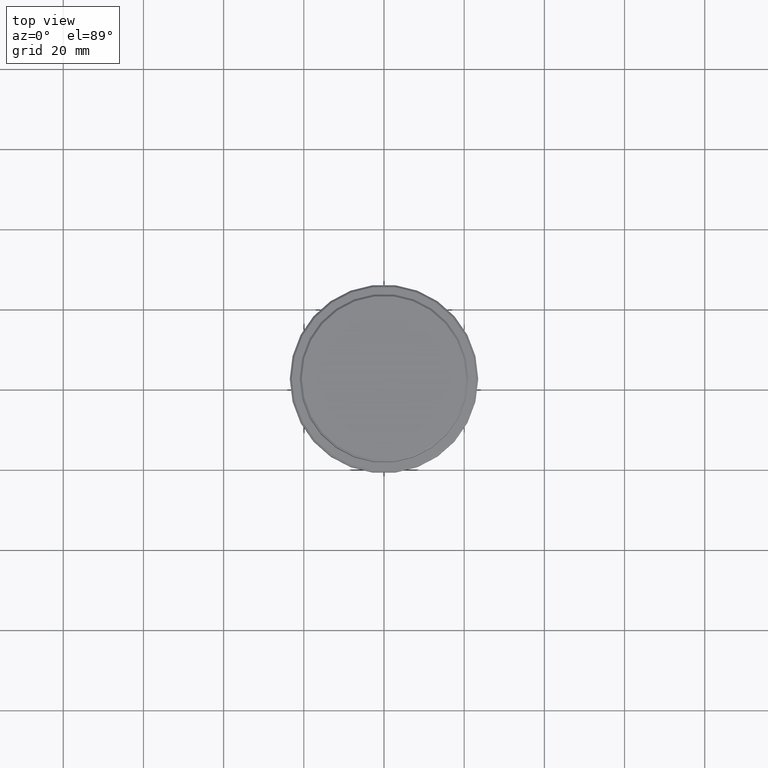
[diagram: clean part render]
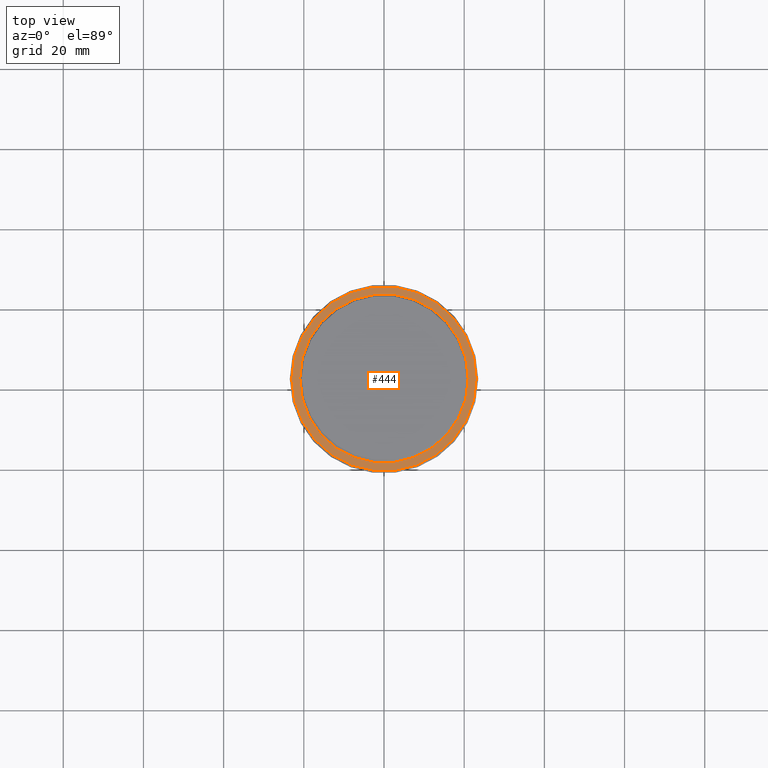
[diagram: same view with one face highlighted and labeled with its STEP entity id]
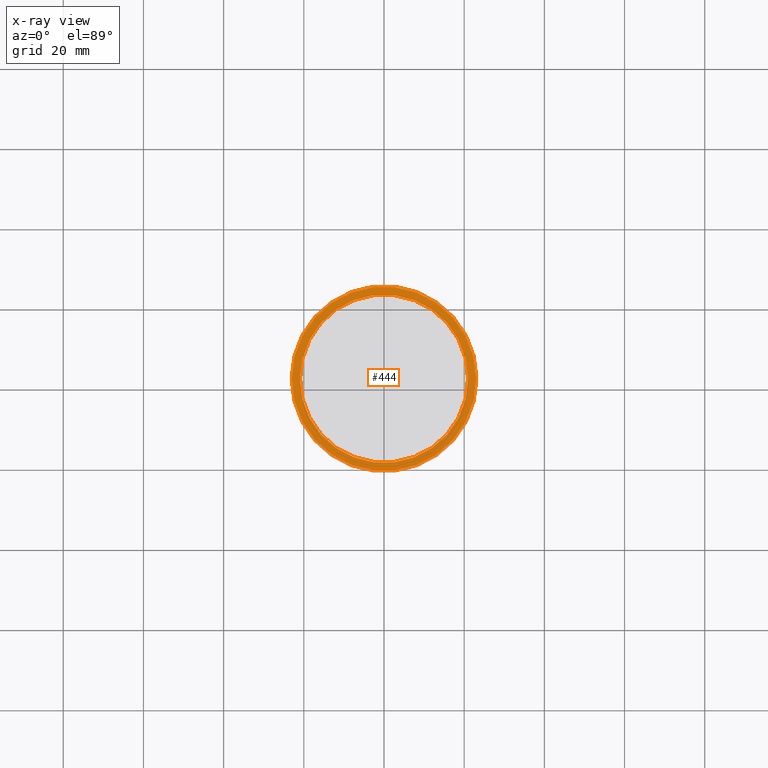
[diagram: x-ray of the same camera — body ghosted, the highlighted face saturated]
A machine part, top view. The second image highlights one B-rep face of the part: STEP entity #444.
The next image is the same camera in x-ray: the body ghosted, the highlighted face saturated — about 0% of this face is hidden behind the body in this view.
In plain terms, the highlighted planar face has unit normal (0, -0, 1).
Its self-contained STEP definition (entity closure, byte-faithful):
#46 = EDGE_CURVE ( 'NONE', #612, #923, #1388, .T. ) ;
#54 = ORIENTED_EDGE ( 'NONE', *, *, #1296, .T. ) ;
#80 = CIRCLE ( 'NONE', #397, 22.99999999999996803 ) ;
#86 = VERTEX_POINT ( 'NONE', #1340 ) ;
#117 = DIRECTION ( 'NONE',  ( -0.000000000000000000, -0.000000000000000000, 1.000000000000000000 ) ) ;
#186 = VERTEX_POINT ( 'NONE', #917 ) ;
#243 = AXIS2_PLACEMENT_3D ( 'NONE', #481, #1251, #693 ) ;
#397 = AXIS2_PLACEMENT_3D ( 'NONE', #692, #1124, #1266 ) ;
#444 = ADVANCED_FACE ( 'NONE', ( #1381, #1352 ), #504, .T. ) ;
#481 = CARTESIAN_POINT ( 'NONE',  ( 0.000000000000000000, 20.49999999999999645, -9.000000000000000000 ) ) ;
#486 = DIRECTION ( 'NONE',  ( 1.000000000000000000, 0.000000000000000000, 0.000000000000000000 ) ) ;
#504 = PLANE ( 'NONE',  #243 ) ;
#523 = ORIENTED_EDGE ( 'NONE', *, *, #1076, .T. ) ;
#586 = CIRCLE ( 'NONE', #725, 20.99999999999999289 ) ;
#612 = VERTEX_POINT ( 'NONE', #646 ) ;
#646 = CARTESIAN_POINT ( 'NONE',  ( -22.99999999999996803, 0.000000000000000000, -9.000000000000000000 ) ) ;
#682 = ORIENTED_EDGE ( 'NONE', *, *, #1055, .T. ) ;
#683 = DIRECTION ( 'NONE',  ( 1.000000000000000000, 0.000000000000000000, 0.000000000000000000 ) ) ;
#692 = CARTESIAN_POINT ( 'NONE',  ( 0.000000000000000000, 0.000000000000000000, -9.000000000000000000 ) ) ;
#693 = DIRECTION ( 'NONE',  ( 1.000000000000000000, 0.000000000000000000, 0.000000000000000000 ) ) ;
#723 = AXIS2_PLACEMENT_3D ( 'NONE', #908, #117, #1001 ) ;
#725 = AXIS2_PLACEMENT_3D ( 'NONE', #1089, #761, #683 ) ;
#761 = DIRECTION ( 'NONE',  ( 0.000000000000000000, 0.000000000000000000, -1.000000000000000000 ) ) ;
#769 = AXIS2_PLACEMENT_3D ( 'NONE', #1134, #1361, #486 ) ;
#778 = ORIENTED_EDGE ( 'NONE', *, *, #46, .T. ) ;
#908 = CARTESIAN_POINT ( 'NONE',  ( 0.000000000000000000, 0.000000000000000000, -9.000000000000000000 ) ) ;
#917 = CARTESIAN_POINT ( 'NONE',  ( 20.99999999999999289, 0.000000000000000000, -9.000000000000000000 ) ) ;
#923 = VERTEX_POINT ( 'NONE', #1338 ) ;
#1001 = DIRECTION ( 'NONE',  ( 1.000000000000000000, 0.000000000000000000, 0.000000000000000000 ) ) ;
#1015 = CIRCLE ( 'NONE', #769, 20.99999999999999289 ) ;
#1055 = EDGE_CURVE ( 'NONE', #923, #612, #80, .T. ) ;
#1076 = EDGE_CURVE ( 'NONE', #86, #186, #1015, .T. ) ;
#1089 = CARTESIAN_POINT ( 'NONE',  ( 0.000000000000000000, 0.000000000000000000, -9.000000000000000000 ) ) ;
#1124 = DIRECTION ( 'NONE',  ( -0.000000000000000000, -0.000000000000000000, 1.000000000000000000 ) ) ;
#1134 = CARTESIAN_POINT ( 'NONE',  ( 0.000000000000000000, 0.000000000000000000, -9.000000000000000000 ) ) ;
#1177 = EDGE_LOOP ( 'NONE', ( #54, #523 ) ) ;
#1251 = DIRECTION ( 'NONE',  ( 0.000000000000000000, -0.000000000000000000, 1.000000000000000000 ) ) ;
#1266 = DIRECTION ( 'NONE',  ( 1.000000000000000000, 0.000000000000000000, 0.000000000000000000 ) ) ;
#1296 = EDGE_CURVE ( 'NONE', #186, #86, #586, .T. ) ;
#1338 = CARTESIAN_POINT ( 'NONE',  ( 22.99999999999996803, 2.847303808017594561E-15, -9.000000000000000000 ) ) ;
#1340 = CARTESIAN_POINT ( 'NONE',  ( -20.99999999999999289, 2.571758278209440872E-15, -9.000000000000000000 ) ) ;
#1352 = FACE_BOUND ( 'NONE', #1177, .T. ) ;
#1361 = DIRECTION ( 'NONE',  ( 0.000000000000000000, 0.000000000000000000, -1.000000000000000000 ) ) ;
#1381 = FACE_OUTER_BOUND ( 'NONE', #1416, .T. ) ;
#1388 = CIRCLE ( 'NONE', #723, 22.99999999999996803 ) ;
#1416 = EDGE_LOOP ( 'NONE', ( #778, #682 ) ) ;